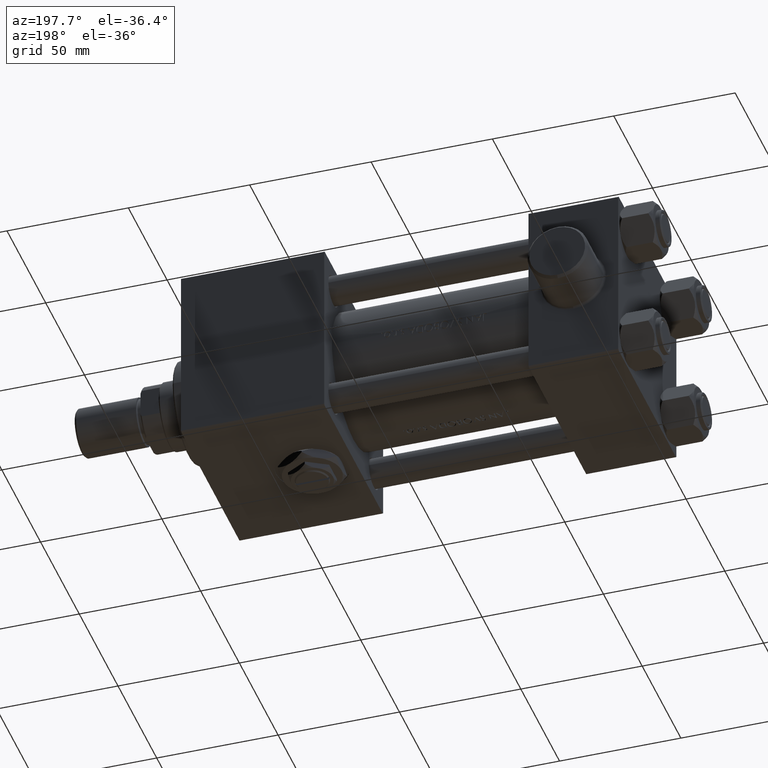
[diagram: clean part render]
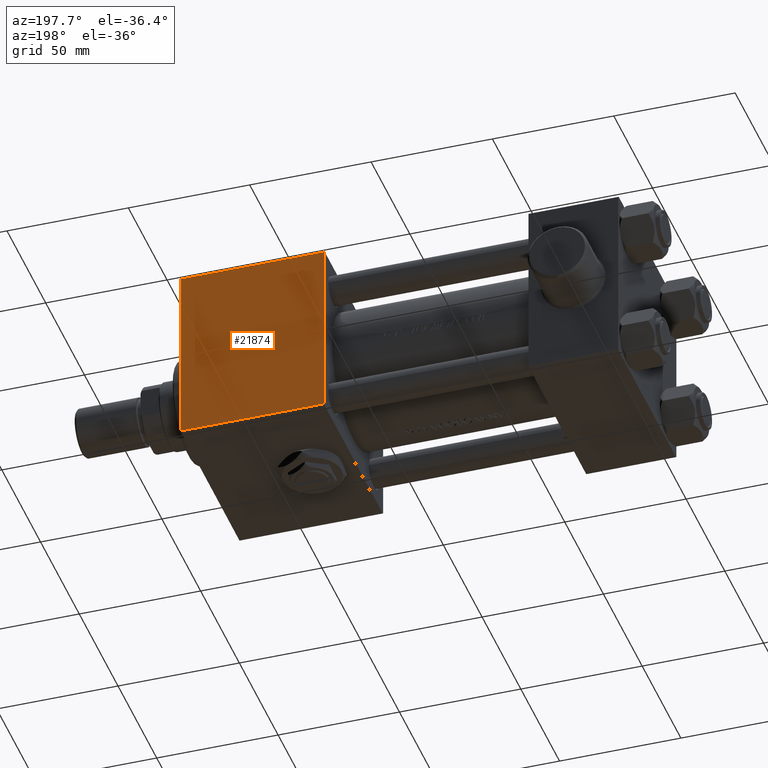
[diagram: same view with one face highlighted and labeled with its STEP entity id]
A machine part, auxiliary view. The second image highlights one B-rep face of the part: STEP entity #21874.
In plain terms, the highlighted planar face has unit normal (0, 1, 0).
Its self-contained STEP definition (entity closure, byte-faithful):
#705 = DIRECTION ( 'NONE',  ( 1.000000000000000000, 0.000000000000000000, 0.000000000000000000 ) ) ;
#1936 = LINE ( 'NONE', #47276, #31375 ) ;
#3680 = CARTESIAN_POINT ( 'NONE',  ( 121.0000000000000000, 38.00000000000000000, -37.00000000000000711 ) ) ;
#3774 = CARTESIAN_POINT ( 'NONE',  ( 180.0000000000000000, 38.00000000000000000, 37.50000000000000711 ) ) ;
#4040 = EDGE_CURVE ( 'NONE', #13153, #36507, #5816, .T. ) ;
#5816 = LINE ( 'NONE', #32827, #38450 ) ;
#9320 = EDGE_CURVE ( 'NONE', #13153, #27402, #26988, .T. ) ;
#9381 = FACE_OUTER_BOUND ( 'NONE', #23850, .T. ) ;
#12362 = VECTOR ( 'NONE', #705, 1000.000000000000000 ) ;
#13153 = VERTEX_POINT ( 'NONE', #47118 ) ;
#13979 = DIRECTION ( 'NONE',  ( 0.000000000000000000, 0.000000000000000000, -1.000000000000000000 ) ) ;
#14890 = VECTOR ( 'NONE', #48851, 1000.000000000000000 ) ;
#15642 = LINE ( 'NONE', #3774, #14890 ) ;
#18601 = CARTESIAN_POINT ( 'NONE',  ( 180.0000000000000000, 38.00000000000000000, -37.00000000000000711 ) ) ;
#21874 = ADVANCED_FACE ( 'NONE', ( #9381 ), #35176, .T. ) ;
#21933 = EDGE_CURVE ( 'NONE', #36054, #36507, #1936, .T. ) ;
#23850 = EDGE_LOOP ( 'NONE', ( #36378, #37870, #35868, #48754 ) ) ;
#24499 = DIRECTION ( 'NONE',  ( 0.000000000000000000, -0.000000000000000000, 1.000000000000000000 ) ) ;
#26988 = LINE ( 'NONE', #41872, #12362 ) ;
#27402 = VERTEX_POINT ( 'NONE', #31232 ) ;
#27965 = CARTESIAN_POINT ( 'NONE',  ( 180.0000000000000000, 38.00000000000000000, 37.50000000000000711 ) ) ;
#30434 = EDGE_CURVE ( 'NONE', #27402, #36054, #15642, .T. ) ;
#31232 = CARTESIAN_POINT ( 'NONE',  ( 180.0000000000000000, 38.00000000000000000, 37.00000000000006395 ) ) ;
#31375 = VECTOR ( 'NONE', #35658, 1000.000000000000000 ) ;
#32827 = CARTESIAN_POINT ( 'NONE',  ( 121.0000000000000000, 38.00000000000000000, 37.50000000000000711 ) ) ;
#35176 = PLANE ( 'NONE',  #44045 ) ;
#35658 = DIRECTION ( 'NONE',  ( -1.000000000000000000, 0.000000000000000000, 0.000000000000000000 ) ) ;
#35868 = ORIENTED_EDGE ( 'NONE', *, *, #30434, .T. ) ;
#36054 = VERTEX_POINT ( 'NONE', #18601 ) ;
#36378 = ORIENTED_EDGE ( 'NONE', *, *, #4040, .F. ) ;
#36507 = VERTEX_POINT ( 'NONE', #3680 ) ;
#37870 = ORIENTED_EDGE ( 'NONE', *, *, #9320, .T. ) ;
#38450 = VECTOR ( 'NONE', #13979, 1000.000000000000000 ) ;
#39135 = DIRECTION ( 'NONE',  ( -0.000000000000000000, 1.000000000000000000, 0.000000000000000000 ) ) ;
#41872 = CARTESIAN_POINT ( 'NONE',  ( 180.0000000000000000, 38.00000000000000000, 37.00000000000006395 ) ) ;
#44045 = AXIS2_PLACEMENT_3D ( 'NONE', #27965, #39135, #24499 ) ;
#47118 = CARTESIAN_POINT ( 'NONE',  ( 121.0000000000000000, 38.00000000000000000, 37.00000000000006395 ) ) ;
#47276 = CARTESIAN_POINT ( 'NONE',  ( 180.0000000000000000, 38.00000000000000000, -37.00000000000000711 ) ) ;
#48754 = ORIENTED_EDGE ( 'NONE', *, *, #21933, .T. ) ;
#48851 = DIRECTION ( 'NONE',  ( 0.000000000000000000, 0.000000000000000000, -1.000000000000000000 ) ) ;